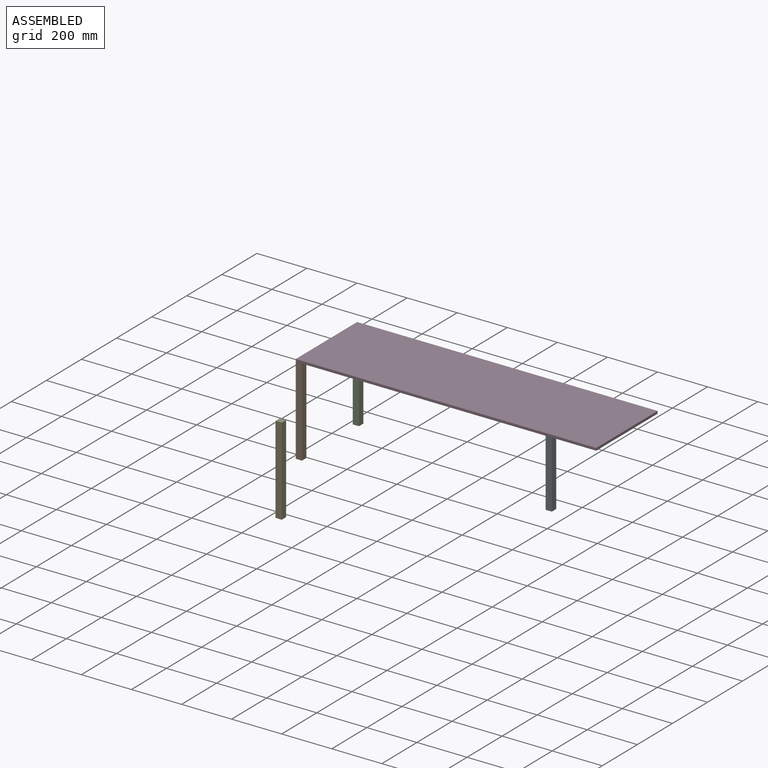
[diagram: assembled view]
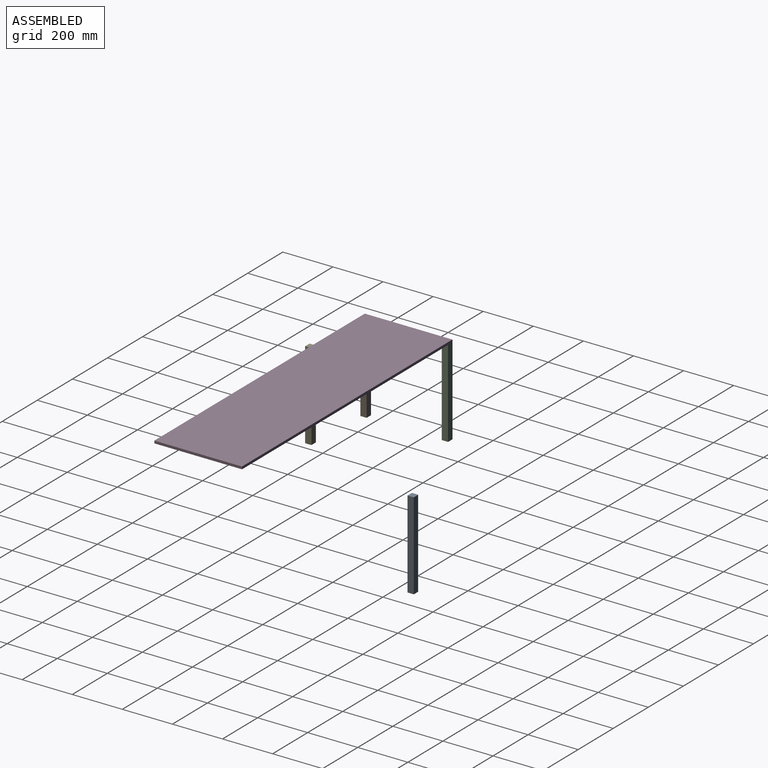
[diagram: assembled view, second angle]
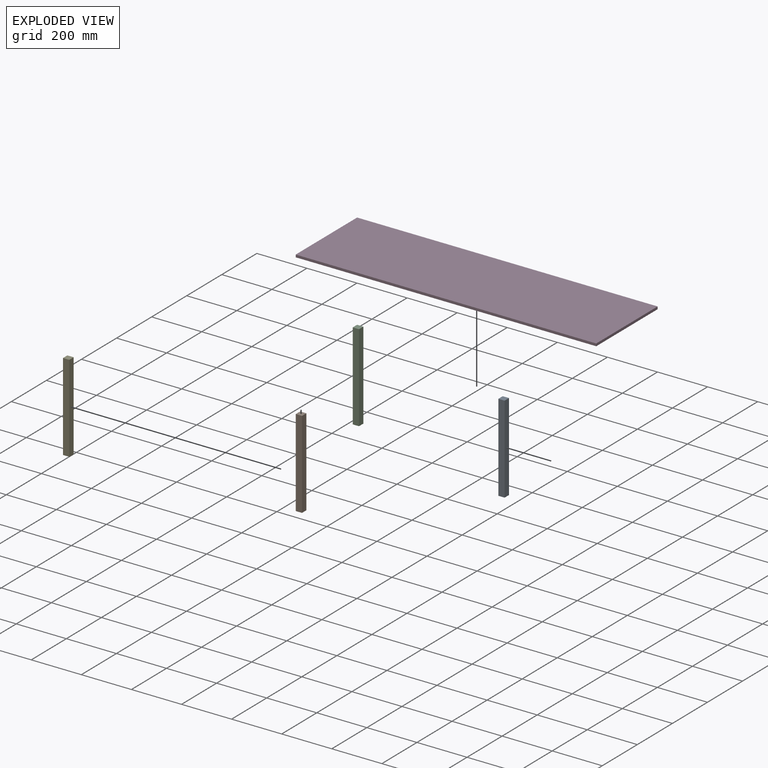
[diagram: exploded view]
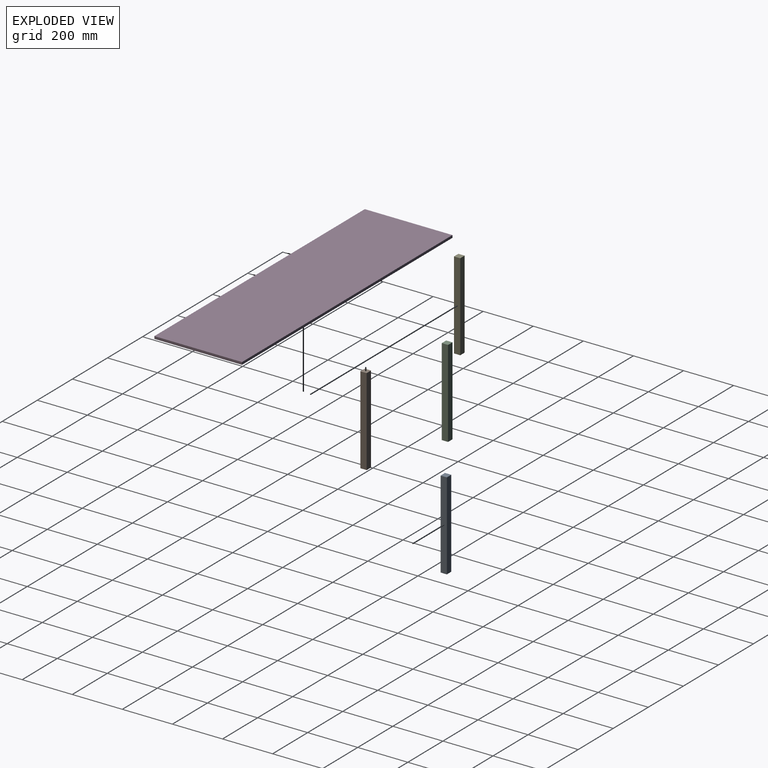
[diagram: exploded view, second angle]
ASSEMBLY  parts=5 mates=2
PART A: 6 faces, bbox 25x25x350 mm
  f0: plane 350x25mm, normal (-1,0,0), area 8750mm2, adj f1,f3,f4,f5
  f1: plane 350x25mm, normal (0,-1,0), area 8750mm2, adj f0,f2,f4,f5
  f2: plane 350x25mm, normal (1,0,0), area 8750mm2, adj f1,f3,f4,f5
  f3: plane 350x25mm, normal (0,1,0), area 8750mm2, adj f0,f2,f4,f5
  f4: plane 25x25mm, normal (0,0,-1), area 625mm2, adj f0,f1,f2,f3
  f5: plane 25x25mm, normal (0,0,1), area 625mm2, adj f0,f1,f2,f3
PART B: same geometry as A
PART C: same geometry as A
PART D: 6 faces, bbox 1200x350x10 mm
  f0: plane 350x10mm, normal (-1,0,0), area 3500mm2, adj f1,f3,f4,f5
  f1: plane 1200x10mm, normal (0,-1,0), area 12000mm2, adj f0,f2,f4,f5
  f2: plane 350x10mm, normal (1,0,0), area 3500mm2, adj f1,f3,f4,f5
  f3: plane 1200x10mm, normal (0,1,0), area 12000mm2, adj f0,f2,f4,f5
  f4: plane 1200x350mm, normal (0,0,1), area 420000mm2, adj f0,f1,f2,f3
  f5: plane 1200x350mm, normal (0,0,-1), area 420000mm2, adj f0,f1,f2,f3
PART E: same geometry as A
PLACE A t=(543.86,501.36,-411.18)mm
PLACE B t=(-37.19,-93.7,-155.23)mm
PLACE C t=(-37.19,231.3,-155.23)mm
PLACE D t=(543.99,60.08,-155.23)mm
PLACE E t=(12.3,-279.57,-284.26)mm
MATE fastened C.f5 <-> D.f5  axis (0,0,1) through (-40.08,229.85,-155.23)mm
MATE fastened B.f5 <-> D.f5  axis (0,0,1) through (-40.08,-120.15,-155.23)mm
